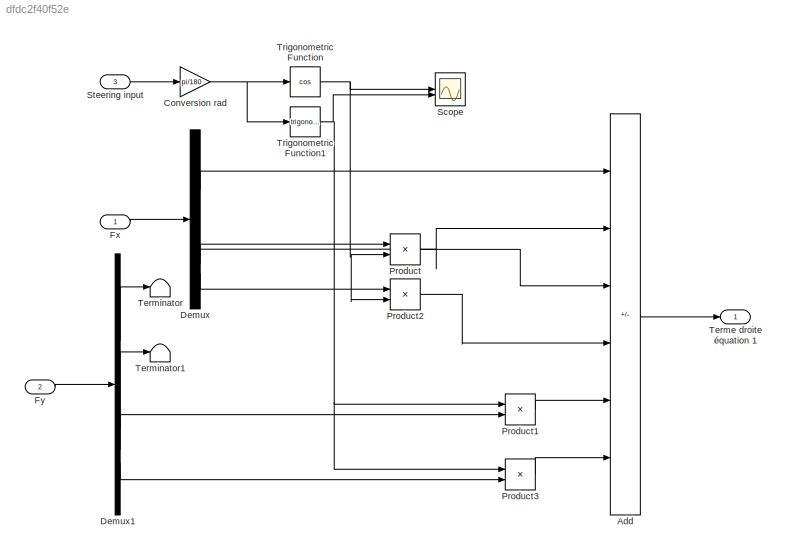
MODEL slx_dfdc2f40f52e
KIND model
CONFIG AbsTol = auto
CONFIG EnableMultiTasking = off
CONFIG FixedStep = Ts
CONFIG MaxStep = auto
CONFIG MinStep = auto
CONFIG RelTol = 1e-3
CONFIG SampleTimeConstraint = Unconstrained
CONFIG SolverName = FixedStepAuto
CONFIG StartTime = 0.0
CONFIG StopTime = 10.0
BLOCK [Sum] Add
  IconShape = rectangular
  Inputs = ++++--
BLOCK [Gain] Conversion rad
  Gain = pi/180
BLOCK [Demux] Demux
BLOCK [Demux] Demux1
BLOCK [Inport] Fx
BLOCK [Inport] Fy
  Port = 2
BLOCK [Product] Product
BLOCK [Product] Product1
BLOCK [Product] Product2
BLOCK [Product] Product3
BLOCK [Scope] Scope
  Floating = off
  NumInputPorts = 2
  ScopeSpecificationString = Simulink.scopes.TimeScopeBlockCfg('CurrentConfiguration', extmgr.ConfigurationSet(extmgr.Configuration('Core','General UI',true),extmgr.Configuration('Core','Source UI',true),extmgr.Configuration('Sources','WiredSimulink',true),extmgr.Configuration('Visuals','Time Domain',true,'SerializedDisplays',{struct('MinYLimReal','-0.125','MaxYLimReal','1.125','YLabelReal','','MinYLimMag','0.00000','MaxYLimM...<+1757ch>
BLOCK [Inport] Steering input
  Port = 3
BLOCK [Outport] Terme droite équation 1
BLOCK [Terminator] Terminator
BLOCK [Terminator] Terminator1
BLOCK [Trigonometry] Trigonometric Function
  Operator = cos
BLOCK [Trigonometry] Trigonometric Function1
LINE Add:1 -> Terme droite équation 1:1
NET Conversion rad:1 -> Trigonometric Function1:1, Trigonometric Function:1
LINE Demux1:1 -> Terminator:1
LINE Demux1:2 -> Terminator1:1
LINE Demux1:3 -> Product1:2
LINE Demux1:4 -> Product3:2
LINE Demux:1 -> Add:1
LINE Demux:2 -> Add:2
LINE Demux:3 -> Product:1
LINE Demux:4 -> Product2:1
LINE Fx:1 -> Demux:1
LINE Fy:1 -> Demux1:1
LINE Product1:1 -> Add:5
LINE Product2:1 -> Add:4
LINE Product3:1 -> Add:6
LINE Product:1 -> Add:3
LINE Steering input:1 -> Conversion rad:1
NET Trigonometric Function1:1 -> Product1:1, Product3:1, Scope:2
NET Trigonometric Function:1 -> Product2:2, Product:2, Scope:1
note: NET lines group one-source signal fan-out (src -> all destinations, sorted); 1:1 wires keep LINE
